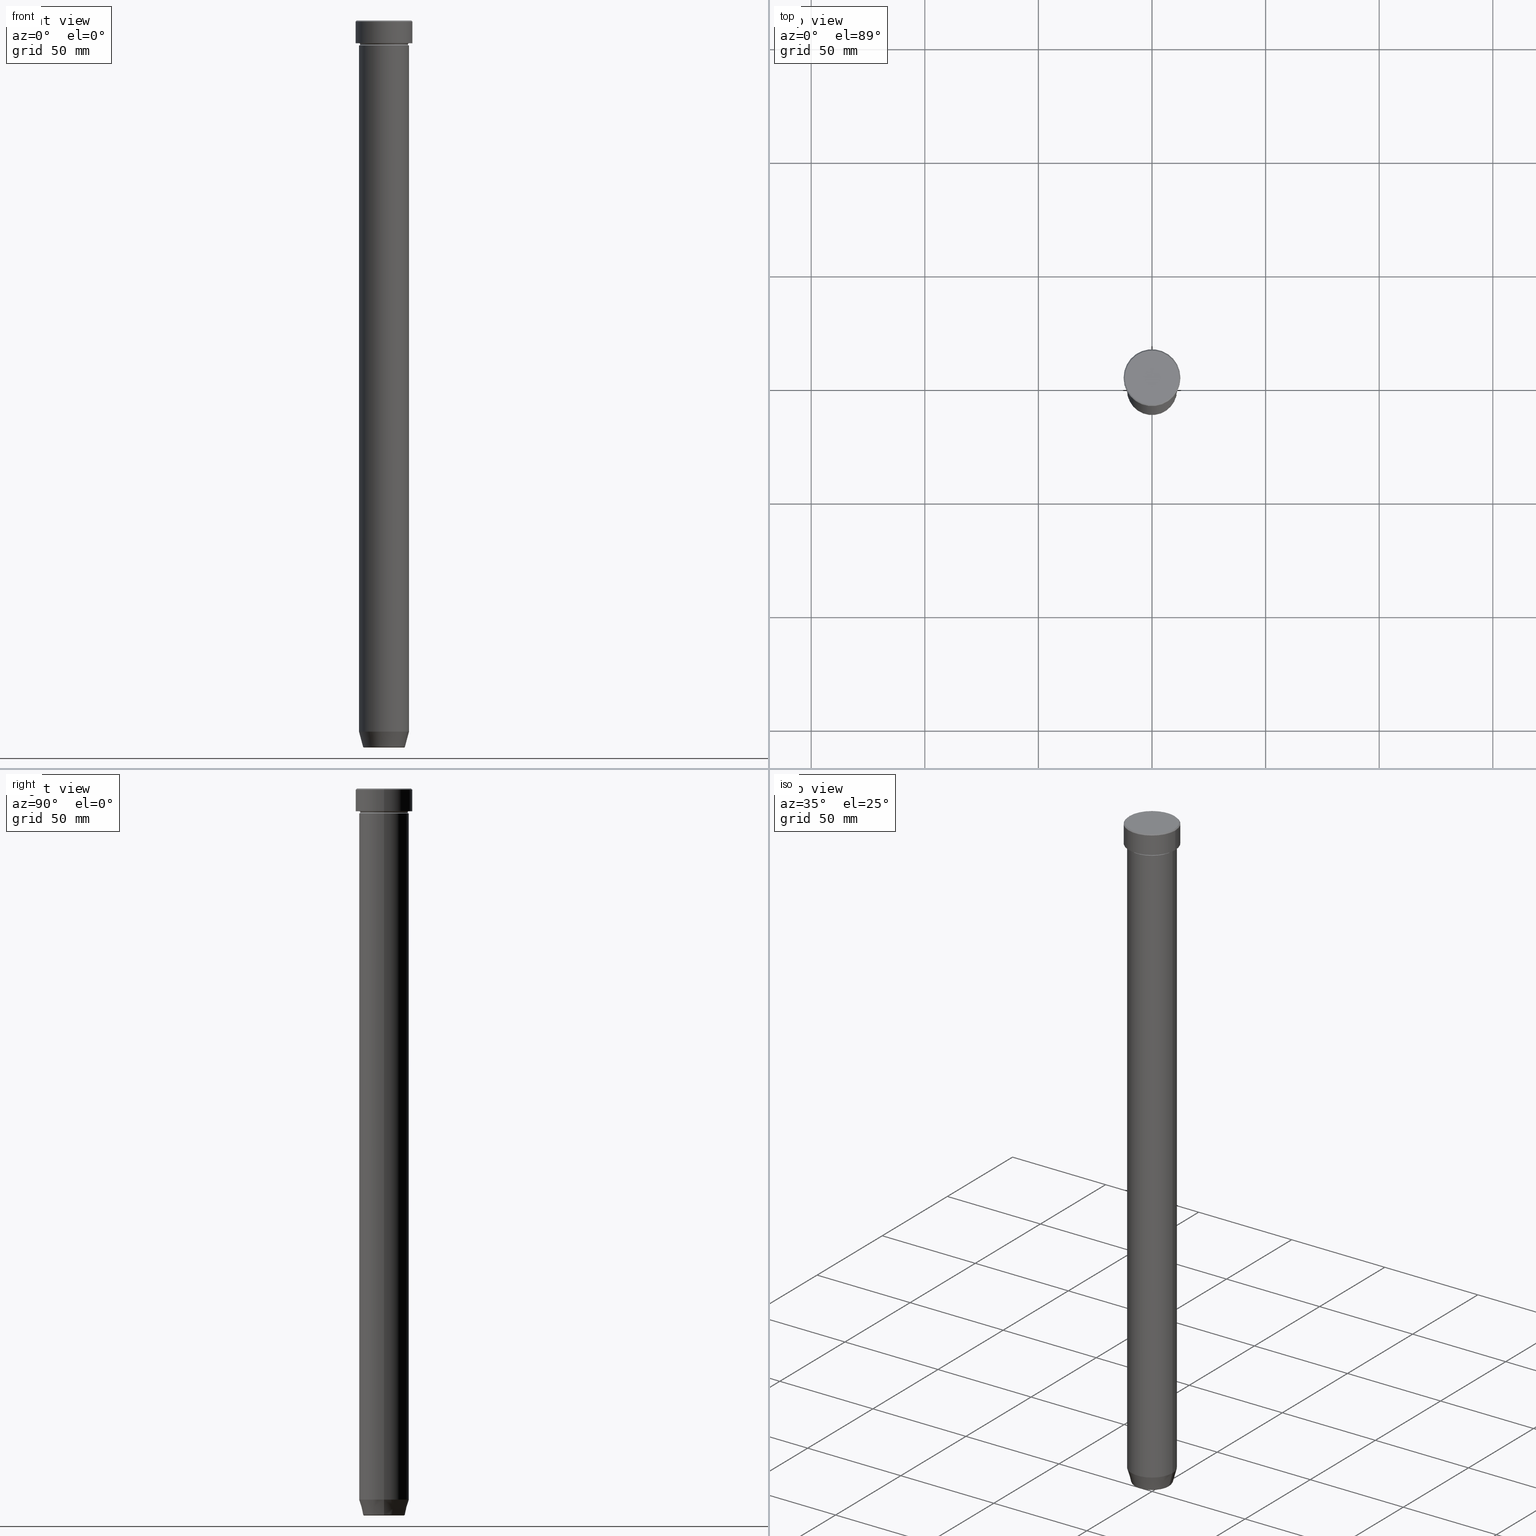
[diagram: canonical four-view strip — front | top / right | iso, engineering-drawing reading convention]
A machine part, canonical four-view strip (front | top / right | iso — engineering-drawing reading convention). The complete STEP part file that produces these views, byte-faithful:
ISO-10303-21;
HEADER;
FILE_DESCRIPTION (( 'STEP AP203' ),
    '1' );
FILE_NAME ('3425.STEP',
    '2024-01-02T19:21:03',
    ( '' ),
    ( '' ),
    'SwSTEP 2.0',
    'SolidWorks 2019',
    '' );
FILE_SCHEMA (( 'CONFIG_CONTROL_DESIGN' ));
ENDSEC;

DATA;
#1 = FACE_OUTER_BOUND ( 'NONE', #230, .T. ) ;
#2 = ORIENTED_EDGE ( 'NONE', *, *, #148, .F. ) ;
#3 = DIRECTION ( 'NONE',  ( -0.000000000000000000, -0.000000000000000000, 1.000000000000000000 ) ) ;
#4 = DIRECTION ( 'NONE',  ( 1.000000000000000000, 0.000000000000000000, 0.000000000000000000 ) ) ;
#5 = ADVANCED_FACE ( 'NONE', ( #209 ), #387, .F. ) ;
#6 = ORIENTED_EDGE ( 'NONE', *, *, #14, .T. ) ;
#7 = CC_DESIGN_APPROVAL ( #241, ( #78 ) ) ;
#8 = LINE ( 'NONE', #351, #479 ) ;
#9 = DIRECTION ( 'NONE',  ( -0.000000000000000000, -1.000000000000000000, -0.000000000000000000 ) ) ;
#10 = EDGE_LOOP ( 'NONE', ( #402, #437, #83, #364 ) ) ;
#11 = DIRECTION ( 'NONE',  ( 0.000000000000000000, 0.000000000000000000, -1.000000000000000000 ) ) ;
#12 = ORIENTED_EDGE ( 'NONE', *, *, #353, .F. ) ;
#13 = COORDINATED_UNIVERSAL_TIME_OFFSET ( 1, 0, .AHEAD. ) ;
#14 = EDGE_CURVE ( 'NONE', #295, #29, #341, .T. ) ;
#15 = CARTESIAN_POINT ( 'NONE',  ( 0.000000000000000000, 0.000000000000000000, -10.49999999999999822 ) ) ;
#16 = VECTOR ( 'NONE', #3, 1000.000000000000000 ) ;
#17 = CARTESIAN_POINT ( 'NONE',  ( 8.740692158992649397, 0.000000000000000000, -319.5000000000000000 ) ) ;
#18 = DIRECTION ( 'NONE',  ( 1.000000000000000000, 0.000000000000000000, 0.000000000000000000 ) ) ;
#19 = DIRECTION ( 'NONE',  ( 0.000000000000000000, -1.000000000000000000, 0.000000000000000000 ) ) ;
#20 = DIRECTION ( 'NONE',  ( 1.000000000000000000, 0.000000000000000000, 0.000000000000000000 ) ) ;
#21 = ORIENTED_EDGE ( 'NONE', *, *, #499, .T. ) ;
#22 = CARTESIAN_POINT ( 'NONE',  ( 0.000000000000000000, 0.000000000000000000, -11.00000000000000000 ) ) ;
#23 = VERTEX_POINT ( 'NONE', #166 ) ;
#24 = CARTESIAN_POINT ( 'NONE',  ( 0.000000000000000000, 0.000000000000000000, -313.0000000000000000 ) ) ;
#25 = ORIENTED_EDGE ( 'NONE', *, *, #546, .F. ) ;
#26 =( NAMED_UNIT ( * ) SI_UNIT ( $, .STERADIAN. ) SOLID_ANGLE_UNIT ( ) );
#27 = CALENDAR_DATE ( 2024, 2, 1 ) ;
#28 = ADVANCED_FACE ( 'NONE', ( #259 ), #541, .T. ) ;
#29 = VERTEX_POINT ( 'NONE', #304 ) ;
#30 = CIRCLE ( 'NONE', #244, 12.00000000000000355 ) ;
#31 = CIRCLE ( 'NONE', #102, 0.5000000000000004441 ) ;
#32 =( LENGTH_UNIT ( ) NAMED_UNIT ( * ) SI_UNIT ( .MILLI., .METRE. ) );
#33 = CC_DESIGN_PERSON_AND_ORGANIZATION_ASSIGNMENT ( #463, #51, ( #78 ) ) ;
#34 = CYLINDRICAL_SURFACE ( 'NONE', #308, 12.50000000000000000 ) ;
#35 = CARTESIAN_POINT ( 'NONE',  ( -12.00000000000000355, 0.000000000000000000, 0.000000000000000000 ) ) ;
#36 = VERTEX_POINT ( 'NONE', #37 ) ;
#37 = CARTESIAN_POINT ( 'NONE',  ( 11.00000000000000000, 0.000000000000000000, -27.00000000000000000 ) ) ;
#38 = TOROIDAL_SURFACE ( 'NONE', #425, 8.740692158992649397, 0.5000000000000000000 ) ;
#39 = AXIS2_PLACEMENT_3D ( 'NONE', #98, #278, #466 ) ;
#40 = ORIENTED_EDGE ( 'NONE', *, *, #194, .T. ) ;
#41 = CARTESIAN_POINT ( 'NONE',  ( 0.000000000000000000, 0.000000000000000000, -319.6294095225512706 ) ) ;
#42 = DIRECTION ( 'NONE',  ( 1.000000000000000000, 0.000000000000000000, 0.000000000000000000 ) ) ;
#43 = EDGE_CURVE ( 'NONE', #295, #348, #536, .T. ) ;
#44 = ORIENTED_EDGE ( 'NONE', *, *, #148, .T. ) ;
#45 = APPLICATION_PROTOCOL_DEFINITION ( 'international standard', 'config_control_design', 1994, #256 ) ;
#46 = CARTESIAN_POINT ( 'NONE',  ( 0.000000000000000000, 0.000000000000000000, -10.49999999999999822 ) ) ;
#47 = AXIS2_PLACEMENT_3D ( 'NONE', #552, #307, #271 ) ;
#48 = ORIENTED_EDGE ( 'NONE', *, *, #571, .F. ) ;
#49 = DIRECTION ( 'NONE',  ( 0.000000000000000000, 0.000000000000000000, 1.000000000000000000 ) ) ;
#50 = ORIENTED_EDGE ( 'NONE', *, *, #184, .F. ) ;
#51 = PERSON_AND_ORGANIZATION_ROLE ( 'creator' ) ;
#52 = EDGE_CURVE ( 'NONE', #224, #94, #557, .T. ) ;
#53 = PERSON_AND_ORGANIZATION ( #162, #597 ) ;
#54 = DIRECTION ( 'NONE',  ( 0.000000000000000000, -0.000000000000000000, 1.000000000000000000 ) ) ;
#55 = CIRCLE ( 'NONE', #236, 12.00000000000000355 ) ;
#56 = AXIS2_PLACEMENT_3D ( 'NONE', #205, #497, #73 ) ;
#57 = DIRECTION ( 'NONE',  ( 0.000000000000000000, 0.000000000000000000, -1.000000000000000000 ) ) ;
#58 = DIRECTION ( 'NONE',  ( -0.000000000000000000, -0.000000000000000000, 1.000000000000000000 ) ) ;
#59 = VERTEX_POINT ( 'NONE', #347 ) ;
#60 = ADVANCED_FACE ( 'NONE', ( #440 ), #493, .T. ) ;
#61 = DIRECTION ( 'NONE',  ( -0.000000000000000000, -0.000000000000000000, 1.000000000000000000 ) ) ;
#62 = ORIENTED_EDGE ( 'NONE', *, *, #590, .F. ) ;
#63 = CARTESIAN_POINT ( 'NONE',  ( 0.000000000000000000, 0.000000000000000000, 0.000000000000000000 ) ) ;
#64 = CIRCLE ( 'NONE', #131, 9.223655072137175281 ) ;
#65 = APPROVAL_PERSON_ORGANIZATION ( #324, #176, #517 ) ;
#66 = CARTESIAN_POINT ( 'NONE',  ( 0.000000000000000000, 0.000000000000000000, 0.000000000000000000 ) ) ;
#67 = EDGE_LOOP ( 'NONE', ( #133, #260, #480, #423 ) ) ;
#68 = FACE_OUTER_BOUND ( 'NONE', #10, .T. ) ;
#69 = EDGE_CURVE ( 'NONE', #23, #560, #219, .T. ) ;
#70 = EDGE_LOOP ( 'NONE', ( #204, #153, #177, #12 ) ) ;
#71 = CYLINDRICAL_SURFACE ( 'NONE', #357, 11.00000000000000000 ) ;
#72 = CARTESIAN_POINT ( 'NONE',  ( 12.00000000000000355, 1.469576158976824342E-15, 0.000000000000000000 ) ) ;
#73 = DIRECTION ( 'NONE',  ( 1.000000000000000000, 0.000000000000000000, 0.000000000000000000 ) ) ;
#74 = CIRCLE ( 'NONE', #392, 8.740692158992649397 ) ;
#75 = CARTESIAN_POINT ( 'NONE',  ( 0.000000000000000000, 0.000000000000000000, -27.00000000000000000 ) ) ;
#76 = CONICAL_SURFACE ( 'NONE', #481, 9.124355652982126585, 0.2617993877991509621 ) ;
#77 = CARTESIAN_POINT ( 'NONE',  ( -11.00000000000000000, 1.347111479062088405E-15, 0.000000000000000000 ) ) ;
#78 = PRODUCT_DEFINITION ( 'NEZN�M�', '', #168, #484 ) ;
#79 = DIRECTION ( 'NONE',  ( -0.2588190451025222383, 3.169619151431782814E-17, 0.9659258262890678681 ) ) ;
#80 = DIRECTION ( 'NONE',  ( 1.000000000000000000, 0.000000000000000000, 0.000000000000000000 ) ) ;
#81 = CARTESIAN_POINT ( 'NONE',  ( 0.000000000000000000, 0.000000000000000000, -27.00000000000000000 ) ) ;
#82 = VERTEX_POINT ( 'NONE', #235 ) ;
#83 = ORIENTED_EDGE ( 'NONE', *, *, #184, .T. ) ;
#84 = PERSON_AND_ORGANIZATION ( #162, #597 ) ;
#85 = EDGE_CURVE ( 'NONE', #289, #413, #293, .T. ) ;
#86 = DIRECTION ( 'NONE',  ( -1.224646799147353207E-16, 1.000000000000000000, 0.000000000000000000 ) ) ;
#87 = EDGE_LOOP ( 'NONE', ( #243, #267 ) ) ;
#88 = APPROVAL_ROLE ( '' ) ;
#89 = DIRECTION ( 'NONE',  ( 1.224646799147353207E-16, 1.000000000000000000, 0.000000000000000000 ) ) ;
#90 = DIRECTION ( 'NONE',  ( -1.000000000000000000, 0.000000000000000000, 0.000000000000000000 ) ) ;
#91 = EDGE_CURVE ( 'NONE', #197, #29, #31, .T. ) ;
#92 = AXIS2_PLACEMENT_3D ( 'NONE', #356, #134, #313 ) ;
#93 = LOCAL_TIME ( 20, 21, 3.000000000000000000, #13 ) ;
#94 = VERTEX_POINT ( 'NONE', #309 ) ;
#95 = CLOSED_SHELL ( 'NONE', ( #258, #362, #228, #234, #28, #490, #410, #60 ) ) ;
#96 = CARTESIAN_POINT ( 'NONE',  ( 0.000000000000000000, 0.000000000000000000, 0.000000000000000000 ) ) ;
#97 = APPROVAL_DATE_TIME ( #566, #176 ) ;
#98 = CARTESIAN_POINT ( 'NONE',  ( 0.000000000000000000, 0.000000000000000000, -313.0000000000000000 ) ) ;
#99 = DIRECTION ( 'NONE',  ( 1.000000000000000000, 0.000000000000000000, 0.000000000000000000 ) ) ;
#100 = AXIS2_PLACEMENT_3D ( 'NONE', #15, #367, #4 ) ;
#101 = DIRECTION ( 'NONE',  ( 1.000000000000000000, 0.000000000000000000, 0.000000000000000000 ) ) ;
#102 = AXIS2_PLACEMENT_3D ( 'NONE', #418, #89, #352 ) ;
#103 = ADVANCED_FACE ( 'NONE', ( #317 ), #227, .F. ) ;
#104 = CARTESIAN_POINT ( 'NONE',  ( 0.000000000000000000, 0.000000000000000000, 0.000000000000000000 ) ) ;
#105 = EDGE_LOOP ( 'NONE', ( #174, #354, #110, #398 ) ) ;
#106 = FACE_OUTER_BOUND ( 'NONE', #426, .T. ) ;
#107 = ORIENTED_EDGE ( 'NONE', *, *, #312, .F. ) ;
#108 = CARTESIAN_POINT ( 'NONE',  ( -12.50000000000000000, 1.530808498934191521E-15, -10.00000000000000000 ) ) ;
#109 = DIRECTION ( 'NONE',  ( 1.000000000000000000, 0.000000000000000000, 0.000000000000000000 ) ) ;
#110 = ORIENTED_EDGE ( 'NONE', *, *, #537, .T. ) ;
#111 = ADVANCED_FACE ( 'NONE', ( #510 ), #358, .T. ) ;
#112 = CIRCLE ( 'NONE', #100, 10.49999999999999822 ) ;
#113 = VECTOR ( 'NONE', #434, 1000.000000000000000 ) ;
#114 = PERSON_AND_ORGANIZATION ( #162, #597 ) ;
#115 = UNCERTAINTY_MEASURE_WITH_UNIT (LENGTH_MEASURE( 1.000000000000000082E-05 ), #32, 'distance_accuracy_value', 'NONE');
#116 = ORIENTED_EDGE ( 'NONE', *, *, #43, .T. ) ;
#117 = APPROVAL ( #486, 'NEUR�EN�' ) ;
#118 = APPROVAL_DATE_TIME ( #538, #117 ) ;
#119 = DIRECTION ( 'NONE',  ( -0.000000000000000000, -0.000000000000000000, 1.000000000000000000 ) ) ;
#120 = DIRECTION ( 'NONE',  ( 0.000000000000000000, -1.000000000000000000, 0.000000000000000000 ) ) ;
#121 = CARTESIAN_POINT ( 'NONE',  ( -11.00000000000000000, 1.347111479062088405E-15, -27.00000000000000000 ) ) ;
#122 = AXIS2_PLACEMENT_3D ( 'NONE', #75, #540, #496 ) ;
#123 = AXIS2_PLACEMENT_3D ( 'NONE', #468, #526, #99 ) ;
#124 = CARTESIAN_POINT ( 'NONE',  ( 0.000000000000000000, 0.000000000000000000, -10.00000000000000000 ) ) ;
#125 = VERTEX_POINT ( 'NONE', #363 ) ;
#126 = DIRECTION ( 'NONE',  ( 1.000000000000000000, 0.000000000000000000, 0.000000000000000000 ) ) ;
#127 = EDGE_CURVE ( 'NONE', #348, #295, #417, .T. ) ;
#128 = ORIENTED_EDGE ( 'NONE', *, *, #210, .T. ) ;
#129 = DIRECTION ( 'NONE',  ( 1.224646799147353207E-16, 1.000000000000000000, 0.000000000000000000 ) ) ;
#130 = DIRECTION ( 'NONE',  ( -1.000000000000000000, 0.000000000000000000, -0.000000000000000000 ) ) ;
#131 = AXIS2_PLACEMENT_3D ( 'NONE', #41, #262, #90 ) ;
#132 = LOCAL_TIME ( 20, 21, 3.000000000000000000, #343 ) ;
#133 = ORIENTED_EDGE ( 'NONE', *, *, #447, .F. ) ;
#134 = DIRECTION ( 'NONE',  ( -0.000000000000000000, -0.000000000000000000, 1.000000000000000000 ) ) ;
#135 = PRODUCT_DEFINITION_SHAPE ( 'NONE', 'NONE',  #78 ) ;
#136 = PLANE ( 'NONE',  #329 ) ;
#137 = EDGE_CURVE ( 'NONE', #125, #197, #112, .T. ) ;
#138 = ORIENTED_EDGE ( 'NONE', *, *, #52, .T. ) ;
#139 = CARTESIAN_POINT ( 'NONE',  ( 0.000000000000000000, 0.000000000000000000, -11.00000000000000000 ) ) ;
#140 = AXIS2_PLACEMENT_3D ( 'NONE', #508, #407, #145 ) ;
#141 = AXIS2_PLACEMENT_3D ( 'NONE', #193, #429, #573 ) ;
#142 = CALENDAR_DATE ( 2024, 2, 1 ) ;
#143 = AXIS2_PLACEMENT_3D ( 'NONE', #570, #455, #401 ) ;
#144 = CARTESIAN_POINT ( 'NONE',  ( 11.00000000000000000, 0.000000000000000000, -313.0000000000000000 ) ) ;
#145 = DIRECTION ( 'NONE',  ( -1.000000000000000000, 0.000000000000000000, 0.000000000000000000 ) ) ;
#146 = CARTESIAN_POINT ( 'NONE',  ( 0.000000000000000000, 0.000000000000000000, 0.000000000000000000 ) ) ;
#147 = DIRECTION ( 'NONE',  ( 1.000000000000000000, 0.000000000000000000, 0.000000000000000000 ) ) ;
#148 = EDGE_CURVE ( 'NONE', #29, #525, #366, .T. ) ;
#149 = CARTESIAN_POINT ( 'NONE',  ( 8.740692158992649397, 0.000000000000000000, -320.0000000000000000 ) ) ;
#150 = ORIENTED_EDGE ( 'NONE', *, *, #91, .F. ) ;
#151 = AXIS2_PLACEMENT_3D ( 'NONE', #249, #328, #147 ) ;
#152 = DIRECTION ( 'NONE',  ( 1.000000000000000000, 0.000000000000000000, 0.000000000000000000 ) ) ;
#153 = ORIENTED_EDGE ( 'NONE', *, *, #527, .T. ) ;
#154 = DIRECTION ( 'NONE',  ( -0.7071067811865462405, 0.000000000000000000, -0.7071067811865489050 ) ) ;
#155 = DIRECTION ( 'NONE',  ( -0.000000000000000000, -0.000000000000000000, 1.000000000000000000 ) ) ;
#156 = EDGE_CURVE ( 'NONE', #125, #94, #330, .T. ) ;
#157 = ORIENTED_EDGE ( 'NONE', *, *, #210, .F. ) ;
#158 = DIRECTION ( 'NONE',  ( -1.000000000000000000, 0.000000000000000000, 0.000000000000000000 ) ) ;
#159 = EDGE_LOOP ( 'NONE', ( #40, #432, #377, #50 ) ) ;
#160 = AXIS2_PLACEMENT_3D ( 'NONE', #475, #57, #520 ) ;
#161 = ORIENTED_EDGE ( 'NONE', *, *, #173, .T. ) ;
#162 = PERSON ( 'NEUR�EN�', 'NEUR�EN�', 'NEUR�EN�', ('NEUR�EN�'), ('NEUR�EN�'), ('NEUR�EN�') ) ;
#163 = LINE ( 'NONE', #488, #113 ) ;
#164 = EDGE_CURVE ( 'NONE', #350, #265, #55, .T. ) ;
#165 = COORDINATED_UNIVERSAL_TIME_OFFSET ( 1, 0, .AHEAD. ) ;
#166 = CARTESIAN_POINT ( 'NONE',  ( -9.223655072137175281, 1.238341722557646018E-15, -319.6294095225512706 ) ) ;
#167 = AXIS2_PLACEMENT_3D ( 'NONE', #473, #119, #80 ) ;
#168 = PRODUCT_DEFINITION_FORMATION_WITH_SPECIFIED_SOURCE ( 'LIBOVOLN�', '', #559, .NOT_KNOWN. ) ;
#169 = DIRECTION ( 'NONE',  ( -0.000000000000000000, -0.000000000000000000, 1.000000000000000000 ) ) ;
#170 = ORIENTED_EDGE ( 'NONE', *, *, #69, .T. ) ;
#171 = DIRECTION ( 'NONE',  ( 0.000000000000000000, 0.000000000000000000, -1.000000000000000000 ) ) ;
#172 = LINE ( 'NONE', #72, #306 ) ;
#173 = EDGE_CURVE ( 'NONE', #94, #224, #225, .T. ) ;
#174 = ORIENTED_EDGE ( 'NONE', *, *, #285, .F. ) ;
#175 = CARTESIAN_POINT ( 'NONE',  ( 0.000000000000000000, 12.50000000000000000, -10.00000000000000000 ) ) ;
#176 = APPROVAL ( #465, 'NEUR�EN�' ) ;
#177 = ORIENTED_EDGE ( 'NONE', *, *, #299, .T. ) ;
#178 = PERSON_AND_ORGANIZATION ( #162, #597 ) ;
#179 = CARTESIAN_POINT ( 'NONE',  ( 12.00000000000000355, 1.500192328955507734E-15, 0.000000000000000000 ) ) ;
#180 = DIRECTION ( 'NONE',  ( -0.000000000000000000, -0.000000000000000000, 1.000000000000000000 ) ) ;
#181 = VECTOR ( 'NONE', #283, 1000.000000000000000 ) ;
#182 = TOROIDAL_SURFACE ( 'NONE', #375, 11.00000000000000000, 0.5000000000000000000 ) ;
#183 = ORIENTED_EDGE ( 'NONE', *, *, #537, .F. ) ;
#184 = EDGE_CURVE ( 'NONE', #197, #224, #355, .T. ) ;
#185 = ORIENTED_EDGE ( 'NONE', *, *, #252, .T. ) ;
#186 = CARTESIAN_POINT ( 'NONE',  ( -11.00000000000000000, 1.347111479062088405E-15, -27.00000000000000000 ) ) ;
#187 = ORIENTED_EDGE ( 'NONE', *, *, #127, .T. ) ;
#188 = PERSON_AND_ORGANIZATION_ROLE ( 'design_supplier' ) ;
#189 = CARTESIAN_POINT ( 'NONE',  ( 11.00000000000000000, 0.000000000000000000, 0.000000000000000000 ) ) ;
#190 = DIRECTION ( 'NONE',  ( 1.000000000000000000, 0.000000000000000000, 0.000000000000000000 ) ) ;
#191 = AXIS2_PLACEMENT_3D ( 'NONE', #467, #9, #359 ) ;
#192 = VECTOR ( 'NONE', #587, 1000.000000000000000 ) ;
#193 = CARTESIAN_POINT ( 'NONE',  ( 0.000000000000000000, 0.000000000000000000, 0.000000000000000000 ) ) ;
#194 = EDGE_CURVE ( 'NONE', #197, #125, #513, .T. ) ;
#195 = FACE_OUTER_BOUND ( 'NONE', #506, .T. ) ;
#196 = CYLINDRICAL_SURFACE ( 'NONE', #123, 12.50000000000000000 ) ;
#197 = VERTEX_POINT ( 'NONE', #336 ) ;
#198 = AXIS2_PLACEMENT_3D ( 'NONE', #460, #326, #529 ) ;
#199 = AXIS2_PLACEMENT_3D ( 'NONE', #22, #279, #18 ) ;
#200 = CARTESIAN_POINT ( 'NONE',  ( 0.000000000000000000, 0.000000000000000000, -320.0000000000000000 ) ) ;
#201 = EDGE_CURVE ( 'NONE', #125, #525, #580, .T. ) ;
#202 = ORIENTED_EDGE ( 'NONE', *, *, #201, .F. ) ;
#203 = CARTESIAN_POINT ( 'NONE',  ( 0.000000000000000000, 0.000000000000000000, -10.50000000000000000 ) ) ;
#204 = ORIENTED_EDGE ( 'NONE', *, *, #323, .F. ) ;
#205 = CARTESIAN_POINT ( 'NONE',  ( 0.000000000000000000, 0.000000000000000000, -0.4999999999999988343 ) ) ;
#206 = EDGE_LOOP ( 'NONE', ( #474, #551 ) ) ;
#207 = DIRECTION ( 'NONE',  ( 0.000000000000000000, 0.000000000000000000, -1.000000000000000000 ) ) ;
#208 = AXIS2_PLACEMENT_3D ( 'NONE', #553, #11, #130 ) ;
#209 = FACE_OUTER_BOUND ( 'NONE', #485, .T. ) ;
#210 = EDGE_CURVE ( 'NONE', #265, #350, #30, .T. ) ;
#211 = PERSON_AND_ORGANIZATION ( #162, #597 ) ;
#212 = CARTESIAN_POINT ( 'NONE',  ( 0.000000000000000000, 0.000000000000000000, -10.00000000000000000 ) ) ;
#213 = PERSON_AND_ORGANIZATION_ROLE ( 'classification_officer' ) ;
#214 = DIRECTION ( 'NONE',  ( -0.000000000000000000, -0.000000000000000000, 1.000000000000000000 ) ) ;
#215 = EDGE_LOOP ( 'NONE', ( #584, #116, #333, #2 ) ) ;
#216 = FACE_OUTER_BOUND ( 'NONE', #383, .T. ) ;
#217 = ADVANCED_FACE ( 'NONE', ( #379 ), #320, .T. ) ;
#218 = CIRCLE ( 'NONE', #47, 8.740692158992649397 ) ;
#219 = CIRCLE ( 'NONE', #471, 9.223655072137175281 ) ;
#220 = ORIENTED_EDGE ( 'NONE', *, *, #285, .T. ) ;
#221 = CC_DESIGN_DATE_AND_TIME_ASSIGNMENT ( #548, #501, ( #78 ) ) ;
#222 = ORIENTED_EDGE ( 'NONE', *, *, #91, .T. ) ;
#223 = CARTESIAN_POINT ( 'NONE',  ( 12.50000000000000000, 0.000000000000000000, -10.00000000000000000 ) ) ;
#224 = VERTEX_POINT ( 'NONE', #532 ) ;
#225 = CIRCLE ( 'NONE', #140, 11.00000000000000000 ) ;
#226 = DIRECTION ( 'NONE',  ( -0.000000000000000000, -0.000000000000000000, 1.000000000000000000 ) ) ;
#227 = TOROIDAL_SURFACE ( 'NONE', #272, 11.00000000000000000, 0.5000000000000000000 ) ;
#228 = ADVANCED_FACE ( 'NONE', ( #294 ), #284, .T. ) ;
#229 = EDGE_LOOP ( 'NONE', ( #138, #161 ) ) ;
#230 = EDGE_LOOP ( 'NONE', ( #441, #274 ) ) ;
#231 = CARTESIAN_POINT ( 'NONE',  ( -8.740692158992649397, 1.070426067484271730E-15, -319.5000000000000000 ) ) ;
#232 = PERSON_AND_ORGANIZATION_ROLE ( 'creator' ) ;
#233 = FACE_OUTER_BOUND ( 'NONE', #555, .T. ) ;
#234 = ADVANCED_FACE ( 'NONE', ( #443 ), #549, .F. ) ;
#235 = CARTESIAN_POINT ( 'NONE',  ( -8.740692158992649397, 1.099999016768738470E-15, -320.0000000000000000 ) ) ;
#236 = AXIS2_PLACEMENT_3D ( 'NONE', #96, #226, #314 ) ;
#237 = AXIS2_PLACEMENT_3D ( 'NONE', #264, #449, #126 ) ;
#238 = FACE_OUTER_BOUND ( 'NONE', #206, .T. ) ;
#239 = PLANE ( 'NONE',  #491 ) ;
#240 = ORIENTED_EDGE ( 'NONE', *, *, #137, .F. ) ;
#241 = APPROVAL ( #266, 'NEUR�EN�' ) ;
#242 = DIRECTION ( 'NONE',  ( 1.000000000000000000, 0.000000000000000000, 0.000000000000000000 ) ) ;
#243 = ORIENTED_EDGE ( 'NONE', *, *, #127, .F. ) ;
#244 = AXIS2_PLACEMENT_3D ( 'NONE', #104, #155, #109 ) ;
#245 = AXIS2_PLACEMENT_3D ( 'NONE', #454, #49, #409 ) ;
#246 = CARTESIAN_POINT ( 'NONE',  ( 0.000000000000000000, 0.000000000000000000, -27.00000000000000000 ) ) ;
#247 = DIRECTION ( 'NONE',  ( 0.000000000000000000, 0.000000000000000000, -1.000000000000000000 ) ) ;
#248 = ORIENTED_EDGE ( 'NONE', *, *, #380, .F. ) ;
#249 = CARTESIAN_POINT ( 'NONE',  ( 0.000000000000000000, 0.000000000000000000, -10.49999999999999822 ) ) ;
#250 = ORIENTED_EDGE ( 'NONE', *, *, #430, .F. ) ;
#251 = CARTESIAN_POINT ( 'NONE',  ( 0.000000000000000000, 0.000000000000000000, -319.5000000000000000 ) ) ;
#252 = EDGE_CURVE ( 'NONE', #23, #59, #433, .T. ) ;
#253 = LINE ( 'NONE', #257, #192 ) ;
#254 = AXIS2_PLACEMENT_3D ( 'NONE', #212, #214, #42 ) ;
#255 =( GEOMETRIC_REPRESENTATION_CONTEXT ( 3 ) GLOBAL_UNCERTAINTY_ASSIGNED_CONTEXT ( ( #115 ) ) GLOBAL_UNIT_ASSIGNED_CONTEXT ( ( #32, #531, #26 ) ) REPRESENTATION_CONTEXT ( 'NONE', 'WORKASPACE' ) );
#256 = APPLICATION_CONTEXT ( 'configuration controlled 3d designs of mechanical parts and assemblies' ) ;
#257 = CARTESIAN_POINT ( 'NONE',  ( 12.50000000000000000, 0.000000000000000000, 0.000000000000000000 ) ) ;
#258 = ADVANCED_FACE ( 'NONE', ( #592 ), #38, .T. ) ;
#259 = FACE_OUTER_BOUND ( 'NONE', #70, .T. ) ;
#260 = ORIENTED_EDGE ( 'NONE', *, *, #277, .T. ) ;
#261 = CIRCLE ( 'NONE', #346, 0.5000000000000004441 ) ;
#262 = DIRECTION ( 'NONE',  ( -0.000000000000000000, -0.000000000000000000, 1.000000000000000000 ) ) ;
#263 = CIRCLE ( 'NONE', #39, 11.00000000000000000 ) ;
#264 = CARTESIAN_POINT ( 'NONE',  ( 0.000000000000000000, 0.000000000000000000, -10.49999999999999822 ) ) ;
#265 = VERTEX_POINT ( 'NONE', #35 ) ;
#266 = APPROVAL_STATUS ( 'not_yet_approved' ) ;
#267 = ORIENTED_EDGE ( 'NONE', *, *, #43, .F. ) ;
#268 = DIRECTION ( 'NONE',  ( 0.000000000000000000, 0.000000000000000000, -1.000000000000000000 ) ) ;
#269 = CARTESIAN_POINT ( 'NONE',  ( 11.00000000000000000, 1.347111479062088405E-15, -10.50000000000000000 ) ) ;
#270 = EDGE_CURVE ( 'NONE', #350, #291, #172, .T. ) ;
#271 = DIRECTION ( 'NONE',  ( 1.000000000000000000, 0.000000000000000000, 0.000000000000000000 ) ) ;
#272 = AXIS2_PLACEMENT_3D ( 'NONE', #46, #180, #190 ) ;
#273 = CONICAL_SURFACE ( 'NONE', #141, 12.00000000000000355, 0.7853981633974465026 ) ;
#274 = ORIENTED_EDGE ( 'NONE', *, *, #277, .F. ) ;
#275 = APPROVAL_DATE_TIME ( #303, #241 ) ;
#276 = COORDINATED_UNIVERSAL_TIME_OFFSET ( 1, 0, .AHEAD. ) ;
#277 = EDGE_CURVE ( 'NONE', #413, #289, #554, .T. ) ;
#278 = DIRECTION ( 'NONE',  ( -0.000000000000000000, -0.000000000000000000, 1.000000000000000000 ) ) ;
#279 = DIRECTION ( 'NONE',  ( -0.000000000000000000, -0.000000000000000000, 1.000000000000000000 ) ) ;
#280 = AXIS2_PLACEMENT_3D ( 'NONE', #246, #61, #372 ) ;
#281 = LOCAL_TIME ( 20, 21, 3.000000000000000000, #165 ) ;
#282 = AXIS2_PLACEMENT_3D ( 'NONE', #461, #412, #452 ) ;
#283 = DIRECTION ( 'NONE',  ( -0.000000000000000000, -0.000000000000000000, 1.000000000000000000 ) ) ;
#284 = CYLINDRICAL_SURFACE ( 'NONE', #167, 11.00000000000000000 ) ;
#285 = EDGE_CURVE ( 'NONE', #82, #23, #261, .T. ) ;
#286 = APPLICATION_CONTEXT ( 'configuration controlled 3d designs of mechanical parts and assemblies' ) ;
#287 = EDGE_LOOP ( 'NONE', ( #453, #318, #48, #509 ) ) ;
#288 = CARTESIAN_POINT ( 'NONE',  ( -12.50000000000000000, 1.530808498934191521E-15, -0.4999999999999988343 ) ) ;
#289 = VERTEX_POINT ( 'NONE', #223 ) ;
#290 = CARTESIAN_POINT ( 'NONE',  ( 11.00000000000000000, 0.000000000000000000, -11.00000000000000000 ) ) ;
#291 = VERTEX_POINT ( 'NONE', #504 ) ;
#292 = CIRCLE ( 'NONE', #56, 12.50000000000000000 ) ;
#293 = CIRCLE ( 'NONE', #282, 12.50000000000000000 ) ;
#294 = FACE_OUTER_BOUND ( 'NONE', #315, .T. ) ;
#295 = VERTEX_POINT ( 'NONE', #186 ) ;
#296 = ADVANCED_FACE ( 'NONE', ( #565, #1 ), #136, .T. ) ;
#297 = ORIENTED_EDGE ( 'NONE', *, *, #527, .F. ) ;
#298 = DIRECTION ( 'NONE',  ( -1.000000000000000000, 0.000000000000000000, 0.000000000000000000 ) ) ;
#299 = EDGE_CURVE ( 'NONE', #337, #36, #400, .T. ) ;
#300 = CARTESIAN_POINT ( 'NONE',  ( 0.000000000000000000, 0.000000000000000000, -10.50000000000000000 ) ) ;
#301 = DATE_AND_TIME ( #389, #132 ) ;
#302 = EDGE_LOOP ( 'NONE', ( #408, #157, #21, #511 ) ) ;
#303 = DATE_AND_TIME ( #512, #419 ) ;
#304 = CARTESIAN_POINT ( 'NONE',  ( -11.00000000000000000, 1.347111479062088405E-15, -11.00000000000000000 ) ) ;
#305 = EDGE_LOOP ( 'NONE', ( #582, #185, #381, #25 ) ) ;
#306 = VECTOR ( 'NONE', #435, 999.9999999999998863 ) ;
#307 = DIRECTION ( 'NONE',  ( 0.000000000000000000, 0.000000000000000000, -1.000000000000000000 ) ) ;
#308 = AXIS2_PLACEMENT_3D ( 'NONE', #544, #494, #483 ) ;
#309 = CARTESIAN_POINT ( 'NONE',  ( 11.00000000000000000, 1.347111479062088405E-15, -10.00000000000000000 ) ) ;
#310 = AXIS2_PLACEMENT_3D ( 'NONE', #124, #169, #298 ) ;
#311 = ORIENTED_EDGE ( 'NONE', *, *, #194, .F. ) ;
#312 = EDGE_CURVE ( 'NONE', #82, #462, #74, .T. ) ;
#313 = DIRECTION ( 'NONE',  ( 1.000000000000000000, 0.000000000000000000, 0.000000000000000000 ) ) ;
#314 = DIRECTION ( 'NONE',  ( 1.000000000000000000, 0.000000000000000000, 0.000000000000000000 ) ) ;
#315 = EDGE_LOOP ( 'NONE', ( #577, #530, #248, #374 ) ) ;
#316 = CC_DESIGN_PERSON_AND_ORGANIZATION_ASSIGNMENT ( #415, #188, ( #168 ) ) ;
#317 = FACE_OUTER_BOUND ( 'NONE', #360, .T. ) ;
#318 = ORIENTED_EDGE ( 'NONE', *, *, #270, .T. ) ;
#319 = CARTESIAN_POINT ( 'NONE',  ( 0.000000000000000000, 0.000000000000000000, -320.0000000000000000 ) ) ;
#320 = CONICAL_SURFACE ( 'NONE', #385, 12.00000000000000355, 0.7853981633974465026 ) ;
#321 = DIRECTION ( 'NONE',  ( 1.000000000000000000, 0.000000000000000000, 0.000000000000000000 ) ) ;
#322 = AXIS2_PLACEMENT_3D ( 'NONE', #24, #478, #472 ) ;
#323 = EDGE_CURVE ( 'NONE', #59, #563, #8, .T. ) ;
#324 = PERSON_AND_ORGANIZATION ( #162, #597 ) ;
#325 = DIRECTION ( 'NONE',  ( 1.000000000000000000, 0.000000000000000000, 0.000000000000000000 ) ) ;
#326 = DIRECTION ( 'NONE',  ( -0.000000000000000000, -0.000000000000000000, 1.000000000000000000 ) ) ;
#327 = DIRECTION ( 'NONE',  ( -0.000000000000000000, -0.000000000000000000, 1.000000000000000000 ) ) ;
#328 = DIRECTION ( 'NONE',  ( -0.000000000000000000, -0.000000000000000000, 1.000000000000000000 ) ) ;
#329 = AXIS2_PLACEMENT_3D ( 'NONE', #175, #405, #569 ) ;
#330 = CIRCLE ( 'NONE', #567, 0.5000000000000004441 ) ;
#331 = FACE_OUTER_BOUND ( 'NONE', #67, .T. ) ;
#332 = CC_DESIGN_PERSON_AND_ORGANIZATION_ASSIGNMENT ( #84, #564, ( #559 ) ) ;
#333 = ORIENTED_EDGE ( 'NONE', *, *, #397, .T. ) ;
#334 = FACE_OUTER_BOUND ( 'NONE', #159, .T. ) ;
#335 = EDGE_LOOP ( 'NONE', ( #457, #444 ) ) ;
#336 = CARTESIAN_POINT ( 'NONE',  ( -10.49999999999999822, 1.316495309083404420E-15, -10.49999999999999822 ) ) ;
#337 = VERTEX_POINT ( 'NONE', #144 ) ;
#338 = EDGE_CURVE ( 'NONE', #560, #23, #64, .T. ) ;
#339 = CIRCLE ( 'NONE', #92, 11.00000000000000000 ) ;
#340 = PRODUCT_RELATED_PRODUCT_CATEGORY ( 'detail', '', ( #559 ) ) ;
#341 = LINE ( 'NONE', #77, #428 ) ;
#342 = CARTESIAN_POINT ( 'NONE',  ( 9.223655072137175281, 0.000000000000000000, -319.6294095225512706 ) ) ;
#343 = COORDINATED_UNIVERSAL_TIME_OFFSET ( 1, 0, .AHEAD. ) ;
#344 = EDGE_CURVE ( 'NONE', #462, #82, #218, .T. ) ;
#345 = DIRECTION ( 'NONE',  ( 1.000000000000000000, 0.000000000000000000, 0.000000000000000000 ) ) ;
#346 = AXIS2_PLACEMENT_3D ( 'NONE', #231, #129, #448 ) ;
#347 = CARTESIAN_POINT ( 'NONE',  ( -11.00000000000000000, 1.347111479062088405E-15, -313.0000000000000000 ) ) ;
#348 = VERTEX_POINT ( 'NONE', #515 ) ;
#349 = CALENDAR_DATE ( 2024, 2, 1 ) ;
#350 = VERTEX_POINT ( 'NONE', #179 ) ;
#351 = CARTESIAN_POINT ( 'NONE',  ( -11.00000000000000000, 1.347111479062088405E-15, 0.000000000000000000 ) ) ;
#352 = DIRECTION ( 'NONE',  ( -1.000000000000000000, 1.224646799147353454E-16, 0.000000000000000000 ) ) ;
#353 = EDGE_CURVE ( 'NONE', #563, #36, #339, .T. ) ;
#354 = ORIENTED_EDGE ( 'NONE', *, *, #344, .F. ) ;
#355 = CIRCLE ( 'NONE', #191, 0.5000000000000004441 ) ;
#356 = CARTESIAN_POINT ( 'NONE',  ( 0.000000000000000000, 0.000000000000000000, -27.00000000000000000 ) ) ;
#357 = AXIS2_PLACEMENT_3D ( 'NONE', #394, #390, #594 ) ;
#358 = PLANE ( 'NONE',  #208 ) ;
#359 = DIRECTION ( 'NONE',  ( 0.000000000000000000, 0.000000000000000000, -1.000000000000000000 ) ) ;
#360 = EDGE_LOOP ( 'NONE', ( #150, #240, #547, #598 ) ) ;
#361 = MECHANICAL_CONTEXT ( 'NONE', #256, 'mechanical' ) ;
#362 = ADVANCED_FACE ( 'NONE', ( #507 ), #470, .T. ) ;
#363 = CARTESIAN_POINT ( 'NONE',  ( 10.49999999999999822, 0.000000000000000000, -10.49999999999999822 ) ) ;
#364 = ORIENTED_EDGE ( 'NONE', *, *, #173, .F. ) ;
#365 = SECURITY_CLASSIFICATION_LEVEL ( 'unclassified' ) ;
#366 = CIRCLE ( 'NONE', #436, 11.00000000000000000 ) ;
#367 = DIRECTION ( 'NONE',  ( -0.000000000000000000, -0.000000000000000000, 1.000000000000000000 ) ) ;
#368 = VECTOR ( 'NONE', #154, 999.9999999999998863 ) ;
#369 = LINE ( 'NONE', #424, #181 ) ;
#370 = PLANE ( 'NONE',  #404 ) ;
#371 = EDGE_CURVE ( 'NONE', #291, #393, #458, .T. ) ;
#372 = DIRECTION ( 'NONE',  ( 1.000000000000000000, 0.000000000000000000, 0.000000000000000000 ) ) ;
#373 = AXIS2_PLACEMENT_3D ( 'NONE', #505, #414, #325 ) ;
#374 = ORIENTED_EDGE ( 'NONE', *, *, #299, .F. ) ;
#375 = AXIS2_PLACEMENT_3D ( 'NONE', #300, #207, #382 ) ;
#376 = LINE ( 'NONE', #583, #368 ) ;
#377 = ORIENTED_EDGE ( 'NONE', *, *, #52, .F. ) ;
#378 = DIRECTION ( 'NONE',  ( -0.000000000000000000, -0.000000000000000000, 1.000000000000000000 ) ) ;
#379 = FACE_OUTER_BOUND ( 'NONE', #287, .T. ) ;
#380 = EDGE_CURVE ( 'NONE', #36, #563, #542, .T. ) ;
#381 = ORIENTED_EDGE ( 'NONE', *, *, #477, .F. ) ;
#382 = DIRECTION ( 'NONE',  ( -1.000000000000000000, 0.000000000000000000, 0.000000000000000000 ) ) ;
#383 = EDGE_LOOP ( 'NONE', ( #588, #534, #528, #62 ) ) ;
#384 = CC_DESIGN_PERSON_AND_ORGANIZATION_ASSIGNMENT ( #211, #213, ( #386 ) ) ;
#385 = AXIS2_PLACEMENT_3D ( 'NONE', #66, #247, #431 ) ;
#386 = SECURITY_CLASSIFICATION ( '', '', #365 ) ;
#387 = TOROIDAL_SURFACE ( 'NONE', #237, 11.00000000000000000, 0.5000000000000000000 ) ;
#388 = ADVANCED_FACE ( 'NONE', ( #331 ), #196, .T. ) ;
#389 = CALENDAR_DATE ( 2024, 2, 1 ) ;
#390 = DIRECTION ( 'NONE',  ( -0.000000000000000000, -0.000000000000000000, 1.000000000000000000 ) ) ;
#391 = DIRECTION ( 'NONE',  ( 1.000000000000000000, 0.000000000000000000, 0.000000000000000000 ) ) ;
#392 = AXIS2_PLACEMENT_3D ( 'NONE', #319, #268, #411 ) ;
#393 = VERTEX_POINT ( 'NONE', #288 ) ;
#394 = CARTESIAN_POINT ( 'NONE',  ( 0.000000000000000000, 0.000000000000000000, 0.000000000000000000 ) ) ;
#395 = LOCAL_TIME ( 20, 21, 3.000000000000000000, #276 ) ;
#396 = ORIENTED_EDGE ( 'NONE', *, *, #164, .T. ) ;
#397 = EDGE_CURVE ( 'NONE', #348, #525, #369, .T. ) ;
#398 = ORIENTED_EDGE ( 'NONE', *, *, #69, .F. ) ;
#399 = APPLICATION_PROTOCOL_DEFINITION ( 'international standard', 'config_control_design', 1994, #286 ) ;
#400 = LINE ( 'NONE', #189, #16 ) ;
#401 = DIRECTION ( 'NONE',  ( 1.000000000000000000, 0.000000000000000000, 0.000000000000000000 ) ) ;
#402 = ORIENTED_EDGE ( 'NONE', *, *, #156, .F. ) ;
#403 = COORDINATED_UNIVERSAL_TIME_OFFSET ( 1, 0, .AHEAD. ) ;
#404 = AXIS2_PLACEMENT_3D ( 'NONE', #63, #54, #20 ) ;
#405 = DIRECTION ( 'NONE',  ( 0.000000000000000000, 0.000000000000000000, -1.000000000000000000 ) ) ;
#406 = CIRCLE ( 'NONE', #199, 11.00000000000000000 ) ;
#407 = DIRECTION ( 'NONE',  ( -0.000000000000000000, -0.000000000000000000, 1.000000000000000000 ) ) ;
#408 = ORIENTED_EDGE ( 'NONE', *, *, #270, .F. ) ;
#409 = DIRECTION ( 'NONE',  ( 1.000000000000000000, 0.000000000000000000, 0.000000000000000000 ) ) ;
#410 = ADVANCED_FACE ( 'NONE', ( #238 ), #239, .F. ) ;
#411 = DIRECTION ( 'NONE',  ( 1.000000000000000000, 0.000000000000000000, 0.000000000000000000 ) ) ;
#412 = DIRECTION ( 'NONE',  ( -0.000000000000000000, -0.000000000000000000, 1.000000000000000000 ) ) ;
#413 = VERTEX_POINT ( 'NONE', #108 ) ;
#414 = DIRECTION ( 'NONE',  ( -0.000000000000000000, -0.000000000000000000, 1.000000000000000000 ) ) ;
#415 = PERSON_AND_ORGANIZATION ( #162, #597 ) ;
#416 = FACE_OUTER_BOUND ( 'NONE', #302, .T. ) ;
#417 = CIRCLE ( 'NONE', #373, 11.00000000000000000 ) ;
#418 = CARTESIAN_POINT ( 'NONE',  ( -11.00000000000000000, 1.347111479062088405E-15, -10.49999999999999822 ) ) ;
#419 = LOCAL_TIME ( 20, 21, 3.000000000000000000, #403 ) ;
#420 = CARTESIAN_POINT ( 'NONE',  ( 0.000000000000000000, 3.306546357697854049E-14, -320.0000000000000000 ) ) ;
#421 = CARTESIAN_POINT ( 'NONE',  ( 11.00000000000000000, 0.000000000000000000, -10.49999999999999822 ) ) ;
#422 = DIRECTION ( 'NONE',  ( 0.000000000000000000, -0.000000000000000000, 1.000000000000000000 ) ) ;
#423 = ORIENTED_EDGE ( 'NONE', *, *, #371, .T. ) ;
#424 = CARTESIAN_POINT ( 'NONE',  ( 11.00000000000000000, 0.000000000000000000, 0.000000000000000000 ) ) ;
#425 = AXIS2_PLACEMENT_3D ( 'NONE', #251, #599, #439 ) ;
#426 = EDGE_LOOP ( 'NONE', ( #187, #6, #250, #500 ) ) ;
#427 = AXIS2_PLACEMENT_3D ( 'NONE', #146, #378, #101 ) ;
#428 = VECTOR ( 'NONE', #593, 1000.000000000000000 ) ;
#429 = DIRECTION ( 'NONE',  ( 0.000000000000000000, 0.000000000000000000, -1.000000000000000000 ) ) ;
#430 = EDGE_CURVE ( 'NONE', #525, #29, #406, .T. ) ;
#431 = DIRECTION ( 'NONE',  ( -1.000000000000000000, 0.000000000000000000, 0.000000000000000000 ) ) ;
#432 = ORIENTED_EDGE ( 'NONE', *, *, #156, .T. ) ;
#433 = LINE ( 'NONE', #487, #533 ) ;
#434 = DIRECTION ( 'NONE',  ( 0.2588190451025222383, 0.000000000000000000, 0.9659258262890678681 ) ) ;
#435 = DIRECTION ( 'NONE',  ( 0.7071067811865462405, 8.659560562354918067E-17, -0.7071067811865489050 ) ) ;
#436 = AXIS2_PLACEMENT_3D ( 'NONE', #139, #558, #321 ) ;
#437 = ORIENTED_EDGE ( 'NONE', *, *, #137, .T. ) ;
#438 = ADVANCED_FACE ( 'NONE', ( #195 ), #370, .T. ) ;
#439 = DIRECTION ( 'NONE',  ( 1.000000000000000000, 0.000000000000000000, 0.000000000000000000 ) ) ;
#440 = FACE_OUTER_BOUND ( 'NONE', #105, .T. ) ;
#441 = ORIENTED_EDGE ( 'NONE', *, *, #85, .F. ) ;
#442 = SHAPE_DEFINITION_REPRESENTATION ( #135, #495 ) ;
#443 = FACE_OUTER_BOUND ( 'NONE', #335, .T. ) ;
#444 = ORIENTED_EDGE ( 'NONE', *, *, #353, .T. ) ;
#445 = AXIS2_PLACEMENT_3D ( 'NONE', #17, #120, #171 ) ;
#446 = CLOSED_SHELL ( 'NONE', ( #217, #519, #5, #469, #579, #111, #438, #388, #296, #595, #103, #561, #456 ) ) ;
#447 = EDGE_CURVE ( 'NONE', #413, #393, #575, .T. ) ;
#448 = DIRECTION ( 'NONE',  ( -1.000000000000000000, 1.224646799147353454E-16, 0.000000000000000000 ) ) ;
#449 = DIRECTION ( 'NONE',  ( -0.000000000000000000, -0.000000000000000000, 1.000000000000000000 ) ) ;
#450 = EDGE_LOOP ( 'NONE', ( #107, #220, #476, #183 ) ) ;
#451 = CC_DESIGN_PERSON_AND_ORGANIZATION_ASSIGNMENT ( #53, #232, ( #168 ) ) ;
#452 = DIRECTION ( 'NONE',  ( 1.000000000000000000, 0.000000000000000000, 0.000000000000000000 ) ) ;
#453 = ORIENTED_EDGE ( 'NONE', *, *, #164, .F. ) ;
#454 = CARTESIAN_POINT ( 'NONE',  ( 0.000000000000000000, 0.000000000000000000, 0.000000000000000000 ) ) ;
#455 = DIRECTION ( 'NONE',  ( -0.000000000000000000, -0.000000000000000000, 1.000000000000000000 ) ) ;
#456 = ADVANCED_FACE ( 'NONE', ( #416 ), #273, .T. ) ;
#457 = ORIENTED_EDGE ( 'NONE', *, *, #380, .T. ) ;
#458 = CIRCLE ( 'NONE', #160, 12.50000000000000000 ) ;
#459 = APPROVAL_PERSON_ORGANIZATION ( #178, #241, #88 ) ;
#460 = CARTESIAN_POINT ( 'NONE',  ( 0.000000000000000000, 0.000000000000000000, -320.0000000000000000 ) ) ;
#461 = CARTESIAN_POINT ( 'NONE',  ( 0.000000000000000000, 0.000000000000000000, -10.00000000000000000 ) ) ;
#462 = VERTEX_POINT ( 'NONE', #149 ) ;
#463 = PERSON_AND_ORGANIZATION ( #162, #597 ) ;
#464 = DIRECTION ( 'NONE',  ( -0.000000000000000000, -0.000000000000000000, 1.000000000000000000 ) ) ;
#465 = APPROVAL_STATUS ( 'not_yet_approved' ) ;
#466 = DIRECTION ( 'NONE',  ( 1.000000000000000000, 0.000000000000000000, 0.000000000000000000 ) ) ;
#467 = CARTESIAN_POINT ( 'NONE',  ( -11.00000000000000000, 0.000000000000000000, -10.50000000000000000 ) ) ;
#468 = CARTESIAN_POINT ( 'NONE',  ( 0.000000000000000000, 0.000000000000000000, 0.000000000000000000 ) ) ;
#469 = ADVANCED_FACE ( 'NONE', ( #106 ), #521, .T. ) ;
#470 = CONICAL_SURFACE ( 'NONE', #198, 9.124355652982126585, 0.2617993877991509621 ) ;
#471 = AXIS2_PLACEMENT_3D ( 'NONE', #545, #464, #516 ) ;
#472 = DIRECTION ( 'NONE',  ( 1.000000000000000000, 0.000000000000000000, 0.000000000000000000 ) ) ;
#473 = CARTESIAN_POINT ( 'NONE',  ( 0.000000000000000000, 0.000000000000000000, 0.000000000000000000 ) ) ;
#474 = ORIENTED_EDGE ( 'NONE', *, *, #344, .T. ) ;
#475 = CARTESIAN_POINT ( 'NONE',  ( 0.000000000000000000, 0.000000000000000000, -0.4999999999999988343 ) ) ;
#476 = ORIENTED_EDGE ( 'NONE', *, *, #338, .F. ) ;
#477 = EDGE_CURVE ( 'NONE', #337, #59, #524, .T. ) ;
#478 = DIRECTION ( 'NONE',  ( -0.000000000000000000, -0.000000000000000000, 1.000000000000000000 ) ) ;
#479 = VECTOR ( 'NONE', #562, 1000.000000000000000 ) ;
#480 = ORIENTED_EDGE ( 'NONE', *, *, #590, .T. ) ;
#481 = AXIS2_PLACEMENT_3D ( 'NONE', #200, #58, #242 ) ;
#482 = AXIS2_PLACEMENT_3D ( 'NONE', #550, #596, #345 ) ;
#483 = DIRECTION ( 'NONE',  ( 1.000000000000000000, 0.000000000000000000, 0.000000000000000000 ) ) ;
#484 = DESIGN_CONTEXT ( 'detailed design', #286, 'design' ) ;
#485 = EDGE_LOOP ( 'NONE', ( #311, #222, #44, #202 ) ) ;
#486 = APPROVAL_STATUS ( 'not_yet_approved' ) ;
#487 = CARTESIAN_POINT ( 'NONE',  ( -9.124355652982126585, 1.117411294470662018E-15, -320.0000000000000000 ) ) ;
#488 = CARTESIAN_POINT ( 'NONE',  ( 9.124355652982126585, 0.000000000000000000, -320.0000000000000000 ) ) ;
#489 = APPROVAL_ROLE ( '' ) ;
#490 = ADVANCED_FACE ( 'NONE', ( #233 ), #76, .T. ) ;
#491 = AXIS2_PLACEMENT_3D ( 'NONE', #420, #422, #152 ) ;
#492 = AXIS2_PLACEMENT_3D ( 'NONE', #81, #498, #391 ) ;
#493 = TOROIDAL_SURFACE ( 'NONE', #143, 8.740692158992649397, 0.5000000000000000000 ) ;
#494 = DIRECTION ( 'NONE',  ( -0.000000000000000000, -0.000000000000000000, 1.000000000000000000 ) ) ;
#495 = ADVANCED_BREP_SHAPE_REPRESENTATION ( '3425', ( #576, #572, #245 ), #255 ) ;
#496 = DIRECTION ( 'NONE',  ( -1.000000000000000000, 0.000000000000000000, -0.000000000000000000 ) ) ;
#497 = DIRECTION ( 'NONE',  ( 0.000000000000000000, 0.000000000000000000, -1.000000000000000000 ) ) ;
#498 = DIRECTION ( 'NONE',  ( -0.000000000000000000, -0.000000000000000000, 1.000000000000000000 ) ) ;
#499 = EDGE_CURVE ( 'NONE', #265, #393, #376, .T. ) ;
#500 = ORIENTED_EDGE ( 'NONE', *, *, #397, .F. ) ;
#501 = DATE_TIME_ROLE ( 'creation_date' ) ;
#502 = ORIENTED_EDGE ( 'NONE', *, *, #252, .F. ) ;
#503 = VECTOR ( 'NONE', #327, 1000.000000000000000 ) ;
#504 = CARTESIAN_POINT ( 'NONE',  ( 12.50000000000000000, 0.000000000000000000, -0.4999999999999988343 ) ) ;
#505 = CARTESIAN_POINT ( 'NONE',  ( 0.000000000000000000, 0.000000000000000000, -27.00000000000000000 ) ) ;
#506 = EDGE_LOOP ( 'NONE', ( #128, #396 ) ) ;
#507 = FACE_OUTER_BOUND ( 'NONE', #305, .T. ) ;
#508 = CARTESIAN_POINT ( 'NONE',  ( 0.000000000000000000, 0.000000000000000000, -10.00000000000000000 ) ) ;
#509 = ORIENTED_EDGE ( 'NONE', *, *, #499, .F. ) ;
#510 = FACE_OUTER_BOUND ( 'NONE', #87, .T. ) ;
#511 = ORIENTED_EDGE ( 'NONE', *, *, #371, .F. ) ;
#512 = CALENDAR_DATE ( 2024, 2, 1 ) ;
#513 = CIRCLE ( 'NONE', #151, 10.49999999999999822 ) ;
#514 = CIRCLE ( 'NONE', #445, 0.5000000000000004441 ) ;
#515 = CARTESIAN_POINT ( 'NONE',  ( 11.00000000000000000, 0.000000000000000000, -27.00000000000000000 ) ) ;
#516 = DIRECTION ( 'NONE',  ( -1.000000000000000000, 0.000000000000000000, 0.000000000000000000 ) ) ;
#517 = APPROVAL_ROLE ( '' ) ;
#518 = DIRECTION ( 'NONE',  ( -1.000000000000000000, -1.224646799147353454E-16, 0.000000000000000000 ) ) ;
#519 = ADVANCED_FACE ( 'NONE', ( #334 ), #543, .F. ) ;
#520 = DIRECTION ( 'NONE',  ( 1.000000000000000000, 0.000000000000000000, 0.000000000000000000 ) ) ;
#521 = CYLINDRICAL_SURFACE ( 'NONE', #427, 11.00000000000000000 ) ;
#522 = AXIS2_PLACEMENT_3D ( 'NONE', #421, #19, #523 ) ;
#523 = DIRECTION ( 'NONE',  ( 0.000000000000000000, 0.000000000000000000, -1.000000000000000000 ) ) ;
#524 = CIRCLE ( 'NONE', #322, 11.00000000000000000 ) ;
#525 = VERTEX_POINT ( 'NONE', #290 ) ;
#526 = DIRECTION ( 'NONE',  ( -0.000000000000000000, -0.000000000000000000, 1.000000000000000000 ) ) ;
#527 = EDGE_CURVE ( 'NONE', #59, #337, #263, .T. ) ;
#528 = ORIENTED_EDGE ( 'NONE', *, *, #571, .T. ) ;
#529 = DIRECTION ( 'NONE',  ( 1.000000000000000000, 0.000000000000000000, 0.000000000000000000 ) ) ;
#530 = ORIENTED_EDGE ( 'NONE', *, *, #323, .T. ) ;
#531 =( NAMED_UNIT ( * ) PLANE_ANGLE_UNIT ( ) SI_UNIT ( $, .RADIAN. ) );
#532 = CARTESIAN_POINT ( 'NONE',  ( -11.00000000000000000, 0.000000000000000000, -10.00000000000000000 ) ) ;
#533 = VECTOR ( 'NONE', #79, 1000.000000000000000 ) ;
#534 = ORIENTED_EDGE ( 'NONE', *, *, #447, .T. ) ;
#535 = CC_DESIGN_SECURITY_CLASSIFICATION ( #386, ( #168 ) ) ;
#536 = CIRCLE ( 'NONE', #492, 11.00000000000000000 ) ;
#537 = EDGE_CURVE ( 'NONE', #462, #560, #514, .T. ) ;
#538 = DATE_AND_TIME ( #27, #281 ) ;
#539 = FACE_OUTER_BOUND ( 'NONE', #215, .T. ) ;
#540 = DIRECTION ( 'NONE',  ( 0.000000000000000000, 0.000000000000000000, -1.000000000000000000 ) ) ;
#541 = CYLINDRICAL_SURFACE ( 'NONE', #482, 11.00000000000000000 ) ;
#542 = CIRCLE ( 'NONE', #280, 11.00000000000000000 ) ;
#543 = TOROIDAL_SURFACE ( 'NONE', #581, 11.00000000000000000, 0.5000000000000000000 ) ;
#544 = CARTESIAN_POINT ( 'NONE',  ( 0.000000000000000000, 0.000000000000000000, 0.000000000000000000 ) ) ;
#545 = CARTESIAN_POINT ( 'NONE',  ( 0.000000000000000000, 0.000000000000000000, -319.6294095225512706 ) ) ;
#546 = EDGE_CURVE ( 'NONE', #560, #337, #163, .T. ) ;
#547 = ORIENTED_EDGE ( 'NONE', *, *, #201, .T. ) ;
#548 = DATE_AND_TIME ( #349, #93 ) ;
#549 = PLANE ( 'NONE',  #122 ) ;
#550 = CARTESIAN_POINT ( 'NONE',  ( 0.000000000000000000, 0.000000000000000000, 0.000000000000000000 ) ) ;
#551 = ORIENTED_EDGE ( 'NONE', *, *, #312, .T. ) ;
#552 = CARTESIAN_POINT ( 'NONE',  ( 0.000000000000000000, 0.000000000000000000, -320.0000000000000000 ) ) ;
#553 = CARTESIAN_POINT ( 'NONE',  ( 0.000000000000000000, 11.00000000000000000, -27.00000000000000000 ) ) ;
#554 = CIRCLE ( 'NONE', #254, 12.50000000000000000 ) ;
#555 = EDGE_LOOP ( 'NONE', ( #502, #170, #586, #297 ) ) ;
#556 = CC_DESIGN_APPROVAL ( #117, ( #386 ) ) ;
#557 = CIRCLE ( 'NONE', #310, 11.00000000000000000 ) ;
#558 = DIRECTION ( 'NONE',  ( -0.000000000000000000, -0.000000000000000000, 1.000000000000000000 ) ) ;
#559 = PRODUCT ( '3425', '3425', '', ( #361 ) ) ;
#560 = VERTEX_POINT ( 'NONE', #342 ) ;
#561 = ADVANCED_FACE ( 'NONE', ( #68 ), #182, .F. ) ;
#562 = DIRECTION ( 'NONE',  ( -0.000000000000000000, -0.000000000000000000, 1.000000000000000000 ) ) ;
#563 = VERTEX_POINT ( 'NONE', #121 ) ;
#564 = PERSON_AND_ORGANIZATION_ROLE ( 'design_owner' ) ;
#565 = FACE_BOUND ( 'NONE', #229, .T. ) ;
#566 = DATE_AND_TIME ( #142, #395 ) ;
#567 = AXIS2_PLACEMENT_3D ( 'NONE', #269, #86, #518 ) ;
#568 = CC_DESIGN_APPROVAL ( #176, ( #168 ) ) ;
#569 = DIRECTION ( 'NONE',  ( -1.000000000000000000, 0.000000000000000000, -0.000000000000000000 ) ) ;
#570 = CARTESIAN_POINT ( 'NONE',  ( 0.000000000000000000, 0.000000000000000000, -319.5000000000000000 ) ) ;
#571 = EDGE_CURVE ( 'NONE', #393, #291, #292, .T. ) ;
#572 = MANIFOLD_SOLID_BREP ( 'Zaoblit4', #95 ) ;
#573 = DIRECTION ( 'NONE',  ( -1.000000000000000000, 0.000000000000000000, 0.000000000000000000 ) ) ;
#574 = CC_DESIGN_DATE_AND_TIME_ASSIGNMENT ( #301, #591, ( #386 ) ) ;
#575 = LINE ( 'NONE', #578, #503 ) ;
#576 = MANIFOLD_SOLID_BREP ( 'Zkosen�1', #446 ) ;
#577 = ORIENTED_EDGE ( 'NONE', *, *, #477, .T. ) ;
#578 = CARTESIAN_POINT ( 'NONE',  ( -12.50000000000000000, 1.530808498934191521E-15, 0.000000000000000000 ) ) ;
#579 = ADVANCED_FACE ( 'NONE', ( #216 ), #34, .T. ) ;
#580 = CIRCLE ( 'NONE', #522, 0.5000000000000004441 ) ;
#581 = AXIS2_PLACEMENT_3D ( 'NONE', #203, #585, #158 ) ;
#582 = ORIENTED_EDGE ( 'NONE', *, *, #338, .T. ) ;
#583 = CARTESIAN_POINT ( 'NONE',  ( -12.00000000000000355, 0.000000000000000000, 0.000000000000000000 ) ) ;
#584 = ORIENTED_EDGE ( 'NONE', *, *, #14, .F. ) ;
#585 = DIRECTION ( 'NONE',  ( 0.000000000000000000, 0.000000000000000000, -1.000000000000000000 ) ) ;
#586 = ORIENTED_EDGE ( 'NONE', *, *, #546, .T. ) ;
#587 = DIRECTION ( 'NONE',  ( -0.000000000000000000, -0.000000000000000000, 1.000000000000000000 ) ) ;
#588 = ORIENTED_EDGE ( 'NONE', *, *, #85, .T. ) ;
#589 = APPROVAL_PERSON_ORGANIZATION ( #114, #117, #489 ) ;
#590 = EDGE_CURVE ( 'NONE', #289, #291, #253, .T. ) ;
#591 = DATE_TIME_ROLE ( 'classification_date' ) ;
#592 = FACE_OUTER_BOUND ( 'NONE', #450, .T. ) ;
#593 = DIRECTION ( 'NONE',  ( -0.000000000000000000, -0.000000000000000000, 1.000000000000000000 ) ) ;
#594 = DIRECTION ( 'NONE',  ( 1.000000000000000000, 0.000000000000000000, 0.000000000000000000 ) ) ;
#595 = ADVANCED_FACE ( 'NONE', ( #539 ), #71, .T. ) ;
#596 = DIRECTION ( 'NONE',  ( -0.000000000000000000, -0.000000000000000000, 1.000000000000000000 ) ) ;
#597 = ORGANIZATION ( 'NEUR�EN�', 'NEUR�EN�', '' ) ;
#598 = ORIENTED_EDGE ( 'NONE', *, *, #430, .T. ) ;
#599 = DIRECTION ( 'NONE',  ( -0.000000000000000000, -0.000000000000000000, 1.000000000000000000 ) ) ;
ENDSEC;
END-ISO-10303-21;
